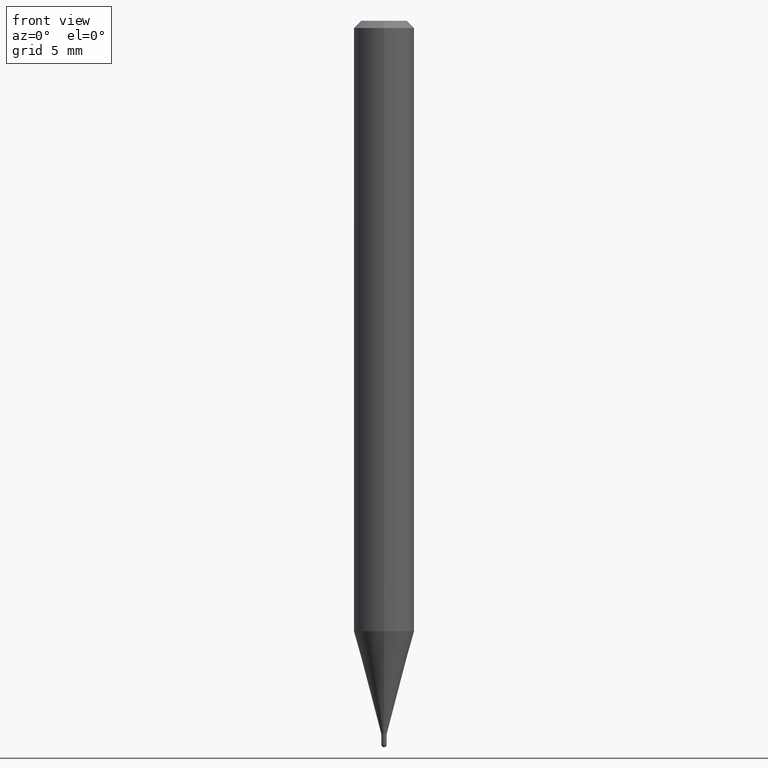
[diagram: clean part render]
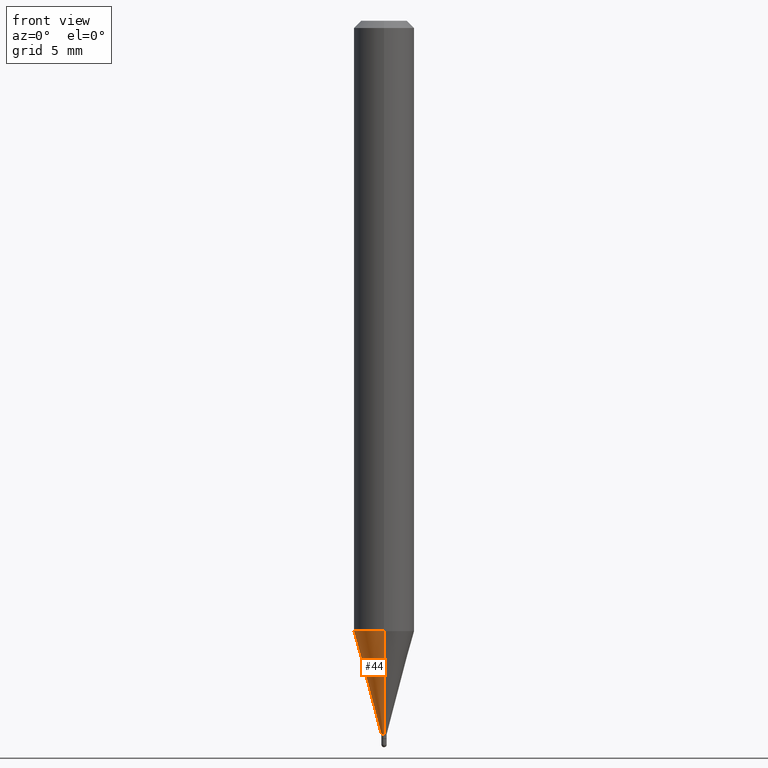
[diagram: same view with one face highlighted and labeled with its STEP entity id]
A machine part, front view. The second image highlights one B-rep face of the part: STEP entity #44.
In plain terms, the highlighted conical surface has half-angle 15 deg.
Its self-contained STEP definition (entity closure, byte-faithful):
#3 = CARTESIAN_POINT ( 'NONE',  ( 3.907985046684097588E-17, 0.005499999999994779898, -1.473000000000000087 ) ) ;
#7 = DIRECTION ( 'NONE',  ( -6.982962677686265922E-15, -1.000000000000000000, 4.370956789862821150E-15 ) ) ;
#12 = EDGE_CURVE ( 'NONE', #289, #14, #511, .T. ) ;
#13 = LINE ( 'NONE', #3, #17 ) ;
#14 = VERTEX_POINT ( 'NONE', #491 ) ;
#17 = VECTOR ( 'NONE', #442, 39.37007874015748143 ) ;
#44 = ADVANCED_FACE ( 'NONE', ( #484 ), #320, .T. ) ;
#93 = VERTEX_POINT ( 'NONE', #474 ) ;
#106 = AXIS2_PLACEMENT_3D ( 'NONE', #242, #481, #395 ) ;
#122 = EDGE_CURVE ( 'NONE', #289, #374, #13, .T. ) ;
#138 = ORIENTED_EDGE ( 'NONE', *, *, #122, .F. ) ;
#142 = DIRECTION ( 'NONE',  ( -1.807323732225330139E-15, -0.2588190451025181860, 0.9659258262890689783 ) ) ;
#165 = EDGE_CURVE ( 'NONE', #374, #93, #462, .T. ) ;
#166 = DIRECTION ( 'NONE',  ( -2.445484146897318999E-29, 3.491459370070161145E-15, 1.000000000000000000 ) ) ;
#242 = CARTESIAN_POINT ( 'NONE',  ( 3.602198148379751749E-29, -5.142919652113348525E-15, -1.473000000000000087 ) ) ;
#252 = ORIENTED_EDGE ( 'NONE', *, *, #165, .F. ) ;
#273 = ORIENTED_EDGE ( 'NONE', *, *, #12, .T. ) ;
#279 = VECTOR ( 'NONE', #142, 39.37007874015748143 ) ;
#289 = VERTEX_POINT ( 'NONE', #328 ) ;
#291 = DIRECTION ( 'NONE',  ( -6.982962677686265922E-15, -1.000000000000000000, 0.000000000000000000 ) ) ;
#320 = CONICAL_SURFACE ( 'NONE', #106, 0.005499999999999922486, 0.2617993877991502960 ) ;
#326 = CARTESIAN_POINT ( 'NONE',  ( 3.602198148379751749E-29, -5.142919652113348525E-15, -1.473000000000000087 ) ) ;
#328 = CARTESIAN_POINT ( 'NONE',  ( 2.415845301584673113E-16, 0.005499999999994779898, -1.473000000000000087 ) ) ;
#343 = CARTESIAN_POINT ( 'NONE',  ( -3.840629472723789408E-17, -0.005500000000005065073, -1.473000000000000087 ) ) ;
#357 = DIRECTION ( 'NONE',  ( -2.445484146897318999E-29, 3.491459370070161145E-15, 1.000000000000000000 ) ) ;
#374 = VERTEX_POINT ( 'NONE', #415 ) ;
#394 = AXIS2_PLACEMENT_3D ( 'NONE', #397, #357, #7 ) ;
#395 = DIRECTION ( 'NONE',  ( -6.982962677686265922E-15, -1.000000000000000000, 0.000000000000000000 ) ) ;
#397 = CARTESIAN_POINT ( 'NONE',  ( 3.081977896516226036E-29, -4.400192337698486268E-15, -1.260273103968574615 ) ) ;
#415 = CARTESIAN_POINT ( 'NONE',  ( 4.440892098500932831E-16, 0.06249999999999558686, -1.260273103968574837 ) ) ;
#426 = LINE ( 'NONE', #343, #279 ) ;
#427 = EDGE_LOOP ( 'NONE', ( #138, #273, #451, #252 ) ) ;
#442 = DIRECTION ( 'NONE',  ( 1.839019923739600315E-15, 0.2588190451025249583, 0.9659258262890670910 ) ) ;
#443 = AXIS2_PLACEMENT_3D ( 'NONE', #326, #166, #291 ) ;
#451 = ORIENTED_EDGE ( 'NONE', *, *, #467, .T. ) ;
#462 = CIRCLE ( 'NONE', #394, 0.06250000000000000000 ) ;
#467 = EDGE_CURVE ( 'NONE', #14, #93, #426, .T. ) ;
#474 = CARTESIAN_POINT ( 'NONE',  ( -4.364351673553608052E-16, -0.06250000000000439926, -1.260273103968574393 ) ) ;
#481 = DIRECTION ( 'NONE',  ( -2.445484146897318999E-29, 3.491459370070161145E-15, 1.000000000000000000 ) ) ;
#484 = FACE_OUTER_BOUND ( 'NONE', #427, .T. ) ;
#491 = CARTESIAN_POINT ( 'NONE',  ( -3.840629472723789408E-17, -0.005500000000005065073, -1.473000000000000087 ) ) ;
#511 = CIRCLE ( 'NONE', #443, 0.005499999999999922486 ) ;